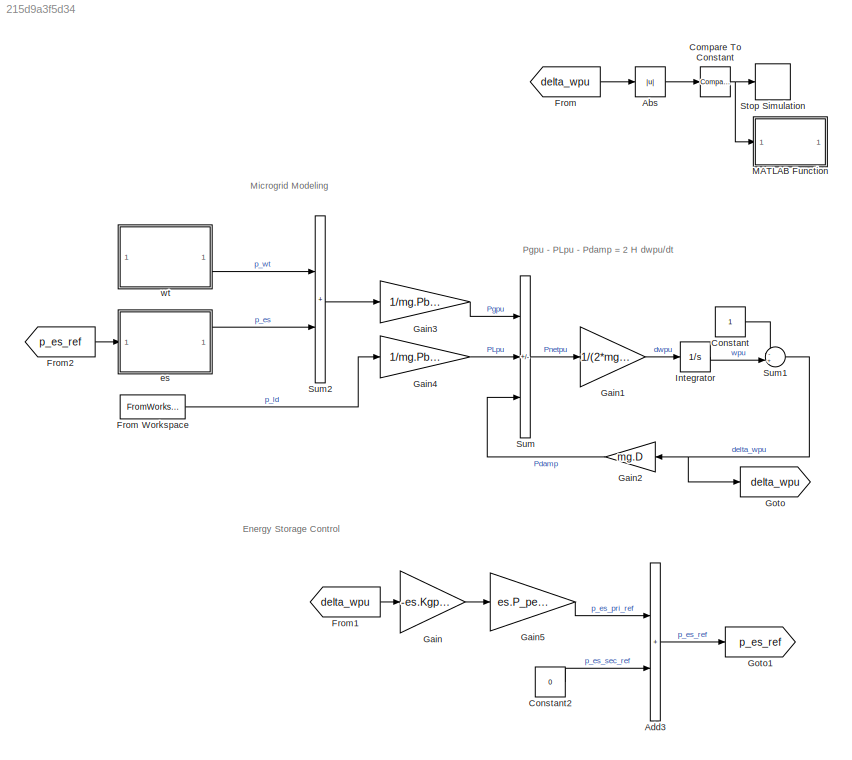
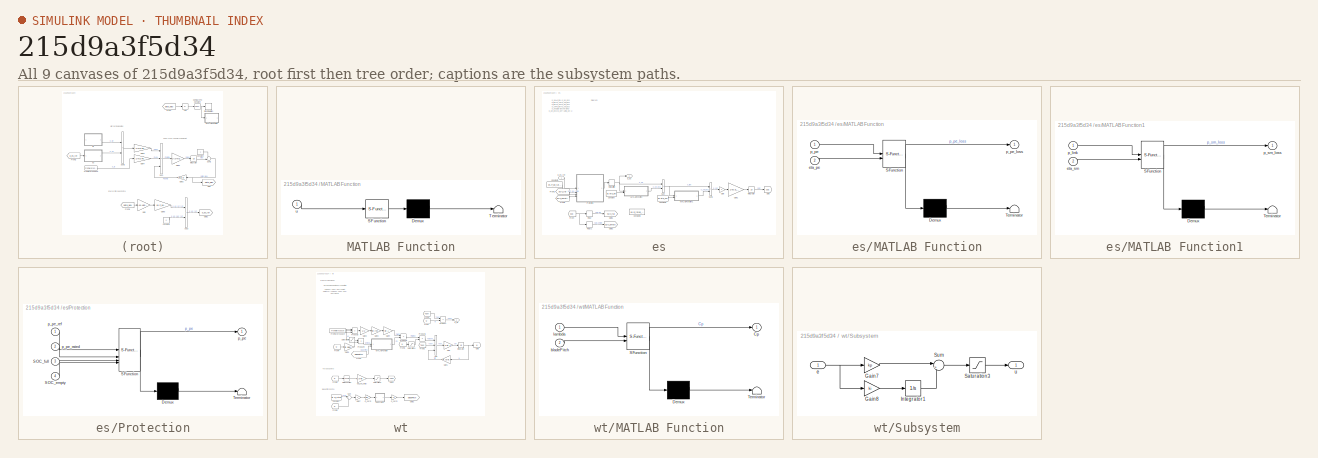
[diagram: thumbnail index - all 9 canvases of the model, root first then tree order]
MODEL slx_215d9a3f5d34
KIND model
CONFIG AbsTol = auto
CONFIG EnableMultiTasking = off
CONFIG FixedStep = auto
CONFIG MaxStep = simu.maxStepSize
CONFIG MinStep = auto
CONFIG RelTol = 1e-3
CONFIG SampleTimeConstraint = Unconstrained
CONFIG SolverName = ode45
CONFIG StartTime = 0.0
CONFIG StopTime = simu.endTime
BLOCK [Abs] Abs
  SaturateOnIntegerOverflow = off
BLOCK [Sum] Add3
  IconShape = rectangular
BLOCK [Reference] Compare To Constant  REF=simulink/Logic and Bit
Operations/Compare
To Constant
  SourceBlock = simulink/Logic and Bit\nOperations/Compare\nTo Constant
  SourceType = Compare To Constant
BLOCK [Constant] Constant
BLOCK [Constant] Constant2
  NameLocation = top
  Value = 0
BLOCK [From] From
  GotoTag = delta_wpu
BLOCK [FromWorkspace] From Workspace
  OutputAfterFinalValue = Setting to zero
  VariableName = loadtimeseries
BLOCK [From] From1
  GotoTag = delta_wpu
BLOCK [From] From2
  GotoTag = p_es_ref
BLOCK [Gain] Gain
  Gain = -es.Kgpri
BLOCK [Gain] Gain1
  Gain = 1/(2*mg.H)
BLOCK [Gain] Gain2
  Gain = mg.D
  NameLocation = top
BLOCK [Gain] Gain3
  Gain = 1/mg.Pbase
BLOCK [Gain] Gain4
  Gain = 1/mg.Pbase
BLOCK [Gain] Gain5
  Gain = es.P_pe_rated
BLOCK [Goto] Goto
  GotoTag = delta_wpu
BLOCK [Goto] Goto1
  GotoTag = p_es_ref
BLOCK [Integrator] Integrator
  InitialCondition = mg.wpu_0
BLOCK [SubSystem] MATLAB Function
  ErrorFcn = Stateflow.Translate.translate
  PermitHierarchicalResolution = ExplicitOnly
  SFBlockType = MATLAB Function
  TreatAsAtomicUnit = on
BLOCK [Demux] MATLAB Function/ Demux 
  Outputs = 1
BLOCK [S-Function] MATLAB Function/ SFunction 
  EnableBusSupport = on
  FunctionName = sf_sfun
  PortCounts = [1 1]
  SFcnIsStateOwnerBlock = off
  SFunctionDeploymentMode = off
  Tag = Stateflow S-Function 5
BLOCK [Terminator] MATLAB Function/ Terminator 
BLOCK [Inport] MATLAB Function/u
BLOCK [Stop] Stop Simulation
BLOCK [Sum] Sum
  IconShape = rectangular
  Inputs = +--
BLOCK [Sum] Sum1
  Inputs = -+|
BLOCK [Sum] Sum2
  IconShape = rectangular
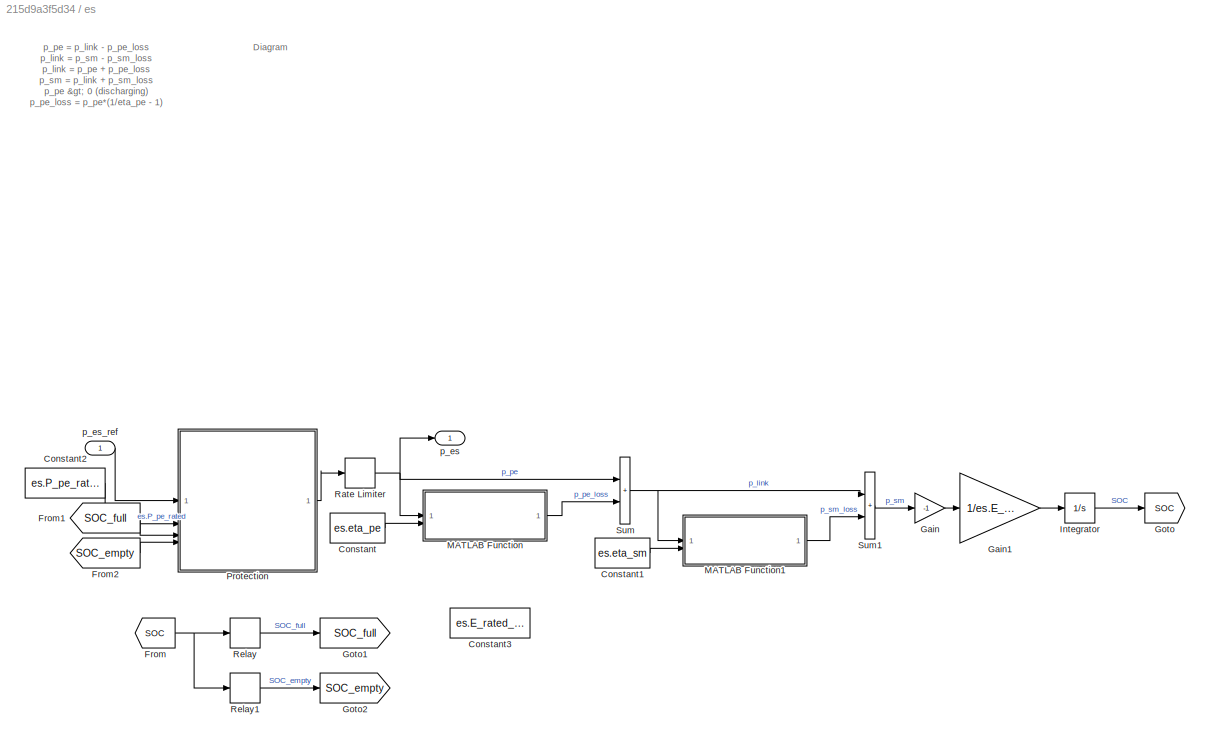
BLOCK [SubSystem] es
BLOCK [Constant] es/Constant
  Value = es.eta_pe
BLOCK [Constant] es/Constant1
  Value = es.eta_sm
BLOCK [Constant] es/Constant2
  Value = es.P_pe_rated
BLOCK [Constant] es/Constant3
  Value = es.E_rated_kWh
BLOCK [From] es/From
  GotoTag = SOC
BLOCK [From] es/From1
  GotoTag = SOC_full
BLOCK [From] es/From2
  GotoTag = SOC_empty
BLOCK [Gain] es/Gain
  Gain = -1
BLOCK [Gain] es/Gain1
  Gain = 1/es.E_rated
BLOCK [Goto] es/Goto
  GotoTag = SOC
BLOCK [Goto] es/Goto1
  GotoTag = SOC_full
BLOCK [Goto] es/Goto2
  GotoTag = SOC_empty
BLOCK [Integrator] es/Integrator
  InitialCondition = es.SOC_0
BLOCK [SubSystem] es/MATLAB Function
  ErrorFcn = Stateflow.Translate.translate
  PermitHierarchicalResolution = ExplicitOnly
  SFBlockType = MATLAB Function
  TreatAsAtomicUnit = on
BLOCK [Demux] es/MATLAB Function/ Demux 
  Outputs = 1
BLOCK [S-Function] es/MATLAB Function/ SFunction 
  EnableBusSupport = on
  FunctionName = sf_sfun
  PortCounts = [2 2]
  SFcnIsStateOwnerBlock = off
  SFunctionDeploymentMode = off
  Tag = Stateflow S-Function 1
BLOCK [Terminator] es/MATLAB Function/ Terminator 
BLOCK [Inport] es/MATLAB Function/eta_pe
  Port = 2
BLOCK [Inport] es/MATLAB Function/p_pe
BLOCK [Outport] es/MATLAB Function/p_pe_loss
BLOCK [SubSystem] es/MATLAB Function1
  ErrorFcn = Stateflow.Translate.translate
  PermitHierarchicalResolution = ExplicitOnly
  SFBlockType = MATLAB Function
  TreatAsAtomicUnit = on
BLOCK [Demux] es/MATLAB Function1/ Demux 
  Outputs = 1
BLOCK [S-Function] es/MATLAB Function1/ SFunction 
  EnableBusSupport = on
  FunctionName = sf_sfun
  PortCounts = [2 2]
  SFcnIsStateOwnerBlock = off
  SFunctionDeploymentMode = off
  Tag = Stateflow S-Function 3
BLOCK [Terminator] es/MATLAB Function1/ Terminator 
BLOCK [Inport] es/MATLAB Function1/eta_sm
  Port = 2
BLOCK [Inport] es/MATLAB Function1/p_link
BLOCK [Outport] es/MATLAB Function1/p_sm_loss
BLOCK [SubSystem] es/Protection
  ErrorFcn = Stateflow.Translate.translate
  PermitHierarchicalResolution = ExplicitOnly
  SFBlockType = MATLAB Function
  TreatAsAtomicUnit = on
BLOCK [Demux] es/Protection/ Demux 
  Outputs = 1
BLOCK [S-Function] es/Protection/ SFunction 
  EnableBusSupport = on
  FunctionName = sf_sfun
  PortCounts = [4 2]
  SFcnIsStateOwnerBlock = off
  SFunctionDeploymentMode = off
  Tag = Stateflow S-Function 4
BLOCK [Terminator] es/Protection/ Terminator 
BLOCK [Inport] es/Protection/SOC_empty
  Port = 4
BLOCK [Inport] es/Protection/SOC_full
  Port = 3
BLOCK [Outport] es/Protection/p_pe
BLOCK [Inport] es/Protection/p_pe_rated
  Port = 2
BLOCK [Inport] es/Protection/p_pe_ref
BLOCK [RateLimiter] es/Rate Limiter
  FallingSlewLimit = es.P_pe_slew_lower
  RisingSlewLimit = es.P_pe_slew_upper
  SampleTimeMode = inherited
BLOCK [Relay] es/Relay
  OffSwitchValue = 0.99
  OnSwitchValue = 1.01
BLOCK [Relay] es/Relay1
  OffOutputValue = 1
  OffSwitchValue = -0.01
  OnOutputValue = 0
  OnSwitchValue = 0.01
BLOCK [Sum] es/Sum
  IconShape = rectangular
BLOCK [Sum] es/Sum1
  IconShape = rectangular
BLOCK [Outport] es/p_es
BLOCK [Inport] es/p_es_ref
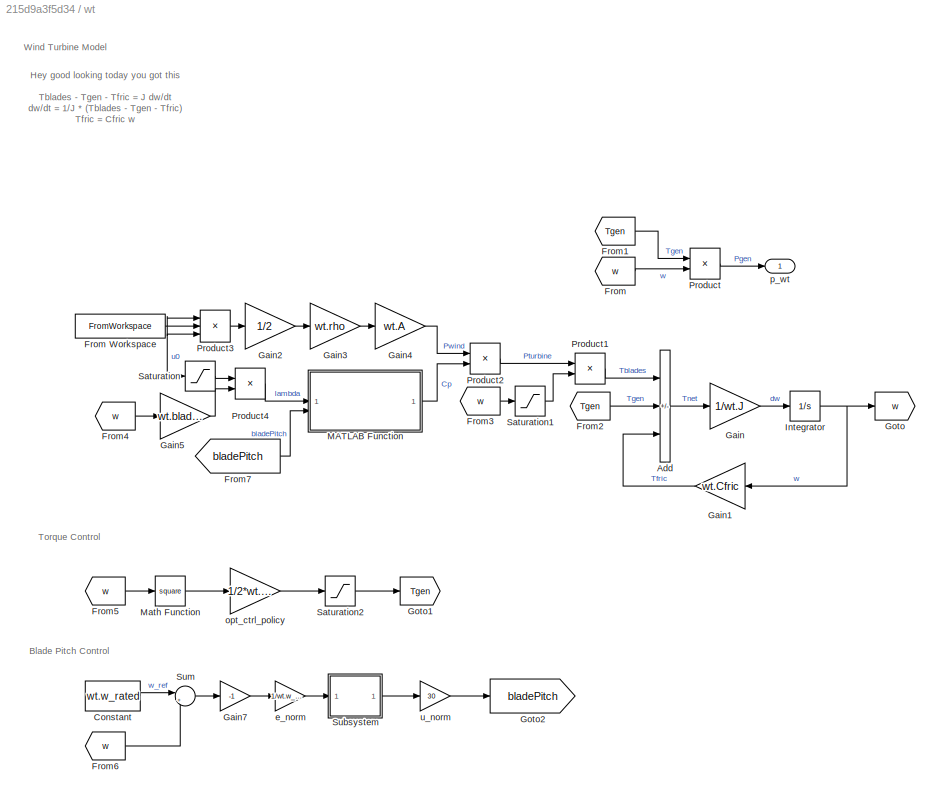
BLOCK [SubSystem] wt
BLOCK [Sum] wt/Add
  IconShape = rectangular
  Inputs = +--
BLOCK [Constant] wt/Constant
  Value = wt.w_rated
BLOCK [From] wt/From
  GotoTag = w
BLOCK [FromWorkspace] wt/From Workspace
  VariableName = windspeedtimeseries
BLOCK [From] wt/From1
  GotoTag = Tgen
BLOCK [From] wt/From2
  GotoTag = Tgen
BLOCK [From] wt/From3
  GotoTag = w
BLOCK [From] wt/From4
  GotoTag = w
BLOCK [From] wt/From5
  GotoTag = w
BLOCK [From] wt/From6
  GotoTag = w
BLOCK [From] wt/From7
  GotoTag = bladePitch
BLOCK [Gain] wt/Gain
  Gain = 1/wt.J
BLOCK [Gain] wt/Gain1
  Gain = wt.Cfric
BLOCK [Gain] wt/Gain2
  Gain = 1/2
BLOCK [Gain] wt/Gain3
  Gain = wt.rho
BLOCK [Gain] wt/Gain4
  Gain = wt.A
BLOCK [Gain] wt/Gain5
  Gain = wt.bladeLength
BLOCK [Gain] wt/Gain7
  Gain = -1
BLOCK [Goto] wt/Goto
  GotoTag = w
BLOCK [Goto] wt/Goto1
  GotoTag = Tgen
BLOCK [Goto] wt/Goto2
  GotoTag = bladePitch
BLOCK [Integrator] wt/Integrator
  InitialCondition = wt.w_0
BLOCK [SubSystem] wt/MATLAB Function
  ErrorFcn = Stateflow.Translate.translate
  PermitHierarchicalResolution = ExplicitOnly
  SFBlockType = MATLAB Function
  TreatAsAtomicUnit = on
BLOCK [Demux] wt/MATLAB Function/ Demux 
  Outputs = 1
BLOCK [S-Function] wt/MATLAB Function/ SFunction 
  EnableBusSupport = on
  FunctionName = sf_sfun
  PortCounts = [2 2]
  SFcnIsStateOwnerBlock = off
  SFunctionDeploymentMode = off
  Tag = Stateflow S-Function 2
BLOCK [Terminator] wt/MATLAB Function/ Terminator 
BLOCK [Outport] wt/MATLAB Function/Cp
BLOCK [Inport] wt/MATLAB Function/bladePitch
  Port = 2
BLOCK [Inport] wt/MATLAB Function/lambda
BLOCK [Math] wt/Math Function
  Operator = square
BLOCK [Product] wt/Product
BLOCK [Product] wt/Product1
  Inputs = */
BLOCK [Product] wt/Product2
BLOCK [Product] wt/Product3
  Inputs = 3
BLOCK [Product] wt/Product4
  Inputs = /*
BLOCK [Saturate] wt/Saturation
  LowerLimit = 1e-3
  UpperLimit = inf
BLOCK [Saturate] wt/Saturation1
  LowerLimit = 1e-3
  UpperLimit = inf
BLOCK [Saturate] wt/Saturation2
  LowerLimit = 0
  UpperLimit = wt.Tgen_rated
BLOCK [SubSystem] wt/Subsystem
BLOCK [Gain] wt/Subsystem/Gain7
  Gain = kp
BLOCK [Gain] wt/Subsystem/Gain8
  Gain = ki
BLOCK [Integrator] wt/Subsystem/Integrator1
  LimitOutput = on
  LowerSaturationLimit = lowerLimit
  UpperSaturationLimit = upperLimit
BLOCK [Saturate] wt/Subsystem/Saturation3
  LowerLimit = lowerLimit
  NameLocation = left
  UpperLimit = upperLimit
BLOCK [Sum] wt/Subsystem/Sum
  Inputs = |++
BLOCK [Inport] wt/Subsystem/e
BLOCK [Outport] wt/Subsystem/u
BLOCK [Sum] wt/Sum
  Inputs = |+-
BLOCK [Gain] wt/e_norm
  Gain = 1/wt.w_rated
BLOCK [Gain] wt/opt_ctrl_policy
  Gain = 1/2*wt.rho*wt.A*wt.Cp_opt/wt.lambda_opt^3*wt.bladeLength^3
BLOCK [Outport] wt/p_wt
BLOCK [Gain] wt/u_norm
  Gain = 30
ANNOTATION (root): Energy Storage Control
ANNOTATION (root): Microgrid Modeling
ANNOTATION (root): Pgpu - PLpu - Pdamp = 2 H dwpu/dt
ANNOTATION es: Diagram
ANNOTATION es: p_pe = p_link - p_pe_loss p_link = p_sm - p_sm_loss p_link = p_pe + p_pe_loss p_sm = p_link + p_sm_loss p_pe > 0 (discharging) p_pe_loss = p_pe*(1/eta_pe - 1) p_pe < 0 (charging) p_pe_loss = p_pe*(eta_pe - 1) p_link > 0 (discharging) p_sm_loss = p_link*(1/eta_sm - 1) p_link < 0 (charging) p_sm_loss = p_link*(eta_sm - 1) e_sm = - int(p_sm) SOC = e_sm / es.E_rated if p_pe_ref > p_pe_upper p_pe = p_p...<+104ch>
ANNOTATION wt: Blade Pitch Control
ANNOTATION wt: Hey good looking today you got this Tblades - Tgen - Tfric = J dw/dt dw/dt = 1/J * (Tblades - Tgen - Tfric) Tfric = Cfric w Pgen = Tgen w Pturbine = Tblades w Tblades = Pturbine/w Pturbine = Pwind Cp Pwind = 1/2 rho A u0^3 lambda = w bladeLength / u0 Tgen = 1/2 rho A Cp_opt/lambda_opt^3 bladeLength^3 w^2
ANNOTATION wt: Torque Control
ANNOTATION wt: Wind Turbine Model
LINE Abs:1 -> Compare To Constant:1
LINE Add3:1 -> Goto1:1
NET Compare To Constant:1 -> MATLAB Function:1, Stop Simulation:1
LINE Constant2:1 -> Add3:2
LINE Constant:1 -> Sum1:1
LINE From Workspace:1 -> Gain4:1
LINE From1:1 -> Gain:1
LINE From2:1 -> es:1
LINE From:1 -> Abs:1
LINE Gain1:1 -> Integrator:1
LINE Gain2:1 -> Sum:3
LINE Gain3:1 -> Sum:1
LINE Gain4:1 -> Sum:2
LINE Gain5:1 -> Add3:1
LINE Gain:1 -> Gain5:1
LINE Integrator:1 -> Sum1:2
NET Sum1:1 -> Gain2:1, Goto:1
LINE Sum2:1 -> Gain3:1
LINE Sum:1 -> Gain1:1
LINE es/Constant1:1 -> es/MATLAB Function1:2
LINE es/Constant2:1 -> es/Protection:2
LINE es/Constant:1 -> es/MATLAB Function:2
LINE es/From1:1 -> es/Protection:3
LINE es/From2:1 -> es/Protection:4
NET es/From:1 -> es/Relay1:1, es/Relay:1
LINE es/Gain1:1 -> es/Integrator:1
LINE es/Gain:1 -> es/Gain1:1
LINE es/Integrator:1 -> es/Goto:1
LINE es/MATLAB Function1:1 -> es/Sum1:2
LINE es/MATLAB Function:1 -> es/Sum:2
LINE es/Protection:1 -> es/Rate Limiter:1
NET es/Rate Limiter:1 -> es/MATLAB Function:1, es/Sum:1, es/p_es:1
LINE es/Relay1:1 -> es/Goto2:1
LINE es/Relay:1 -> es/Goto1:1
LINE es/Sum1:1 -> es/Gain:1
NET es/Sum:1 -> es/MATLAB Function1:1, es/Sum1:1
LINE es/p_es_ref:1 -> es/Protection:1
LINE es:1 -> Sum2:2
LINE wt/Add:1 -> wt/Gain:1
LINE wt/Constant:1 -> wt/Sum:1
NET wt/From Workspace:1 -> wt/Product3:1, wt/Product3:2, wt/Product3:3, wt/Saturation:1
LINE wt/From1:1 -> wt/Product:1
LINE wt/From2:1 -> wt/Add:2
LINE wt/From3:1 -> wt/Saturation1:1
LINE wt/From4:1 -> wt/Gain5:1
LINE wt/From5:1 -> wt/Math Function:1
LINE wt/From6:1 -> wt/Sum:2
LINE wt/From7:1 -> wt/MATLAB Function:2
LINE wt/From:1 -> wt/Product:2
LINE wt/Gain1:1 -> wt/Add:3
LINE wt/Gain2:1 -> wt/Gain3:1
LINE wt/Gain3:1 -> wt/Gain4:1
LINE wt/Gain4:1 -> wt/Product2:1
LINE wt/Gain5:1 -> wt/Product4:2
LINE wt/Gain7:1 -> wt/e_norm:1
LINE wt/Gain:1 -> wt/Integrator:1
NET wt/Integrator:1 -> wt/Gain1:1, wt/Goto:1
LINE wt/MATLAB Function:1 -> wt/Product2:2
LINE wt/Math Function:1 -> wt/opt_ctrl_policy:1
LINE wt/Product1:1 -> wt/Add:1
LINE wt/Product2:1 -> wt/Product1:1
LINE wt/Product3:1 -> wt/Gain2:1
LINE wt/Product4:1 -> wt/MATLAB Function:1
LINE wt/Product:1 -> wt/p_wt:1
LINE wt/Saturation1:1 -> wt/Product1:2
LINE wt/Saturation2:1 -> wt/Goto1:1
LINE wt/Saturation:1 -> wt/Product4:1
LINE wt/Subsystem/Gain7:1 -> wt/Subsystem/Sum:1
LINE wt/Subsystem/Gain8:1 -> wt/Subsystem/Integrator1:1
LINE wt/Subsystem/Integrator1:1 -> wt/Subsystem/Sum:2
LINE wt/Subsystem/Saturation3:1 -> wt/Subsystem/u:1
LINE wt/Subsystem/Sum:1 -> wt/Subsystem/Saturation3:1
NET wt/Subsystem/e:1 -> wt/Subsystem/Gain7:1, wt/Subsystem/Gain8:1
LINE wt/Subsystem:1 -> wt/u_norm:1
LINE wt/Sum:1 -> wt/Gain7:1
LINE wt/e_norm:1 -> wt/Subsystem:1
LINE wt/opt_ctrl_policy:1 -> wt/Saturation2:1
LINE wt/u_norm:1 -> wt/Goto2:1
LINE wt:1 -> Sum2:1
note: NET lines group one-source signal fan-out (src -> all destinations, sorted); 1:1 wires keep LINE
CHART es/MATLAB Function states=1 transitions=1
  STATE_LABEL 'eML_blk_kernel()'
  STATE_LABEL 'SCRIPT:\nfunction p_pe_loss = fcn(p_pe,eta_pe)\n% p_pe > 0 (discharging)\n% p_pe_loss = p_pe*(1/eta_pe - 1)\n%\n% p_pe < 0 (charging)\n% p_pe_loss = p_pe*(eta_pe - 1)\n\nif p_pe > 0\n    p_pe_loss = p_pe*(1/eta_pe-1);\nelseif p_pe < 0\n    p_pe_loss = p_pe*(eta_pe-1);\nelseif p_pe == 0\n    p_pe_loss = 0;\nelse\n    error("I didnt think of this")\nend'
CHART wt/MATLAB Function states=1 transitions=1
  STATE_LABEL 'eML_blk_kernel()'
  STATE_LABEL 'SCRIPT:\nfunction Cp = fcn(lambda,bladePitch)\n\n% https://www.mathworks.com/help/physmod/sps/powersys/ref/windturbine.html\n\nc = [...\n    0.5176 ...\n    116 ...\n    0.4 ...\n    5 ...\n    21 ...\n    0.0068];\n\nif (lambda+0.08*bladePitch) == 0\n    lambda = 1e-3;\nend\n\nlambdaai = 1/( 1/(lambda+0.08*bladePitch) - 0.035/(bladePitch^3+1) );\n\nCp = c(1)*(c(2)/lambdaai-c(3)*bladePitch-c(4))*exp(-c(5)/lambdaai) ...<+14ch>'
CHART es/MATLAB Function1 states=1 transitions=1
  STATE_LABEL 'eML_blk_kernel()'
  STATE_LABEL 'SCRIPT:\nfunction p_sm_loss = fcn(p_link,eta_sm)\n% p_link > 0 (discharging)\n% p_sm_loss = p_link*(1/eta_sm - 1)\n%\n% p_link < 0 (charging)\n% p_sm_loss = p_link*(eta_sm - 1)\n\nif p_link > 0\n    p_sm_loss = p_link*(1/eta_sm-1);\nelseif p_link < 0\n    p_sm_loss = p_link*(eta_sm-1);\nelseif p_link == 0\n    p_sm_loss = 0;\nelse\n    error("I didnt think of this")\nend'
CHART es/Protection states=1 transitions=1
  STATE_LABEL 'eML_blk_kernel()'
  STATE_LABEL 'SCRIPT:\nfunction p_pe = fcn(p_pe_ref,p_pe_rated,SOC_full,SOC_empty)\n% p_pe_upper = p_pe_rated\n% p_pe_lower = -p_pe_rated\n%\n% if SOC >= 1\n% p_pe_lower = 0\n% \n% if SOC <= 0\n% p_pe_upper = 0\n%\n% if p_pe_ref > p_pe_upper\n% p_pe = p_pe_upper\n% \n% if p_pe_ref < p_pe_lower\n% p_pe = p_pe_lower\n\np_pe_upper = p_pe_rated; % 10\np_pe_lower = -p_pe_rated; % -10\n\nif SOC_full\n    p_pe_lower = 0; % 0\nend\n\nif SOC_e...<+159ch>'
CHART MATLAB Function states=1 transitions=1
  STATE_LABEL 'eML_blk_kernel()'
  STATE_LABEL 'SCRIPT:\nfunction errormessage(u)\n\nif u == 1\n    error("!!!Microgrid exploded due to mismanagement!!!")\nend'
CHART  states=0 transitions=0
CHART  states=0 transitions=0
CHART  states=0 transitions=0
CHART  states=0 transitions=0
CHART  states=0 transitions=0
